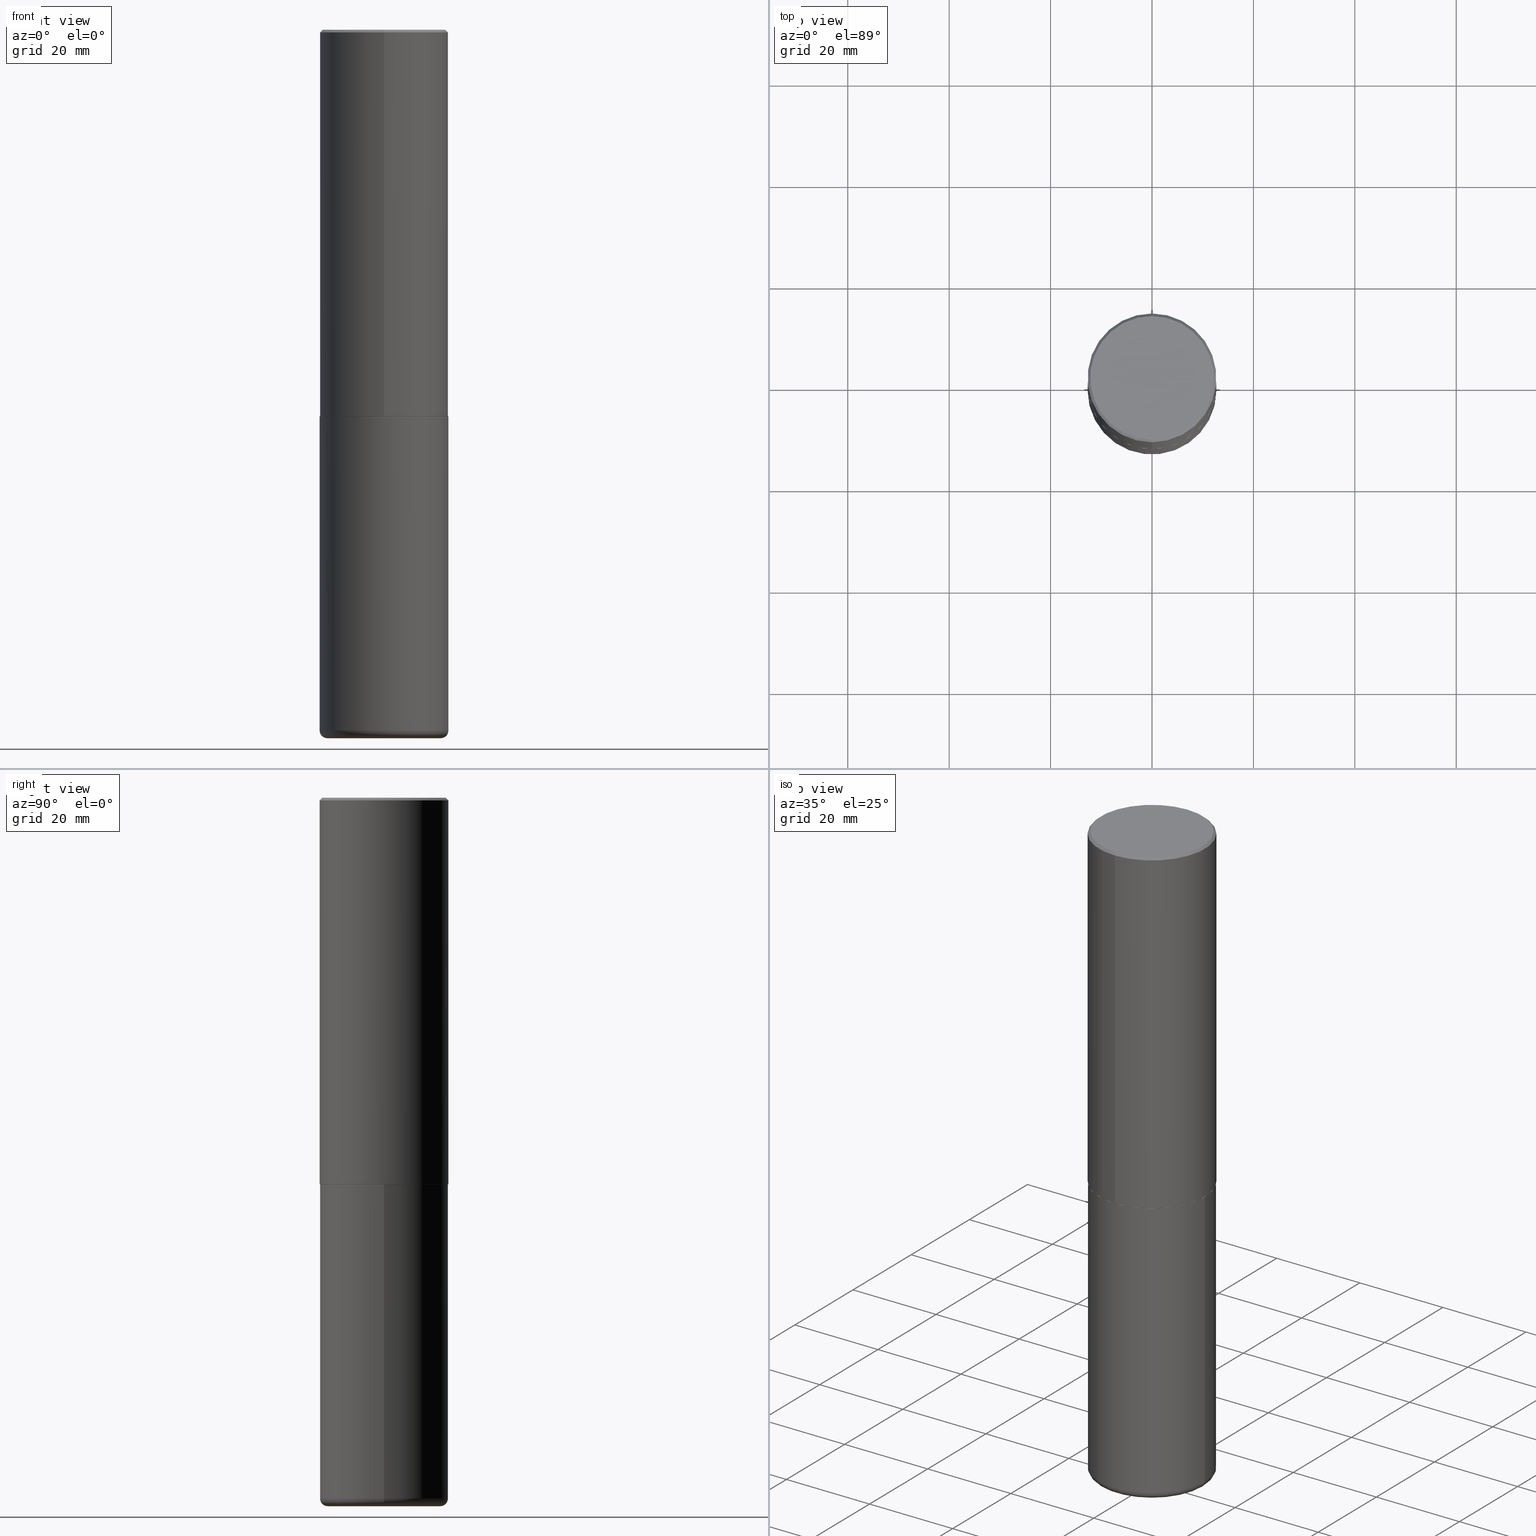
[diagram: canonical four-view strip — front | top / right | iso, engineering-drawing reading convention]
A machine part, canonical four-view strip (front | top / right | iso — engineering-drawing reading convention). The complete STEP part file that produces these views, byte-faithful:
ISO-10303-21;
HEADER;
FILE_DESCRIPTION (( 'STEP AP203' ),
    '1' );
FILE_NAME ('77471.STEP',
    '2024-05-02T19:46:28',
    ( '' ),
    ( '' ),
    'SwSTEP 2.0',
    'SolidWorks 2023',
    '' );
FILE_SCHEMA (( 'CONFIG_CONTROL_DESIGN' ));
ENDSEC;

DATA;
#1 = CARTESIAN_POINT ( 'NONE',  ( 0.000000000000000000, 0.000000000000000000, 0.000000000000000000 ) ) ;
#2 = DIRECTION ( 'NONE',  ( -2.445468806185136597E-29, 3.491481338843145583E-15, 1.000000000000000000 ) ) ;
#3 = VECTOR ( 'NONE', #286, 39.37007874015748143 ) ;
#4 = ORIENTED_EDGE ( 'NONE', *, *, #26, .F. ) ;
#5 = DIRECTION ( 'NONE',  ( -2.445468806185136597E-29, 3.491481338843145583E-15, 1.000000000000000000 ) ) ;
#6 = CIRCLE ( 'NONE', #68, 0.4400000000000000022 ) ;
#7 = ORGANIZATION ( 'UNSPECIFIED', 'UNSPECIFIED', '' ) ;
#8 = ORIENTED_EDGE ( 'NONE', *, *, #89, .T. ) ;
#9 = ORIENTED_EDGE ( 'NONE', *, *, #105, .F. ) ;
#10 = APPROVAL_ROLE ( '' ) ;
#11 = VECTOR ( 'NONE', #307, 39.37007874015748143 ) ;
#12 = APPROVAL_PERSON_ORGANIZATION ( #18, #39, #78 ) ;
#13 = CYLINDRICAL_SURFACE ( 'NONE', #332, 0.5000000000000001110 ) ;
#14 = ORIENTED_EDGE ( 'NONE', *, *, #167, .T. ) ;
#15 = COORDINATED_UNIVERSAL_TIME_OFFSET ( 5, 0, .BEHIND. ) ;
#16 = CARTESIAN_POINT ( 'NONE',  ( -3.491481338843061963E-15, -0.5000000000000107692, -2.998999999999998778 ) ) ;
#17 = ORIENTED_EDGE ( 'NONE', *, *, #63, .F. ) ;
#18 = PERSON_AND_ORGANIZATION ( #201, #7 ) ;
#19 = CARTESIAN_POINT ( 'NONE',  ( 4.892036605208077240E-31, -6.981388857391842821E-17, -0.02000000000000010797 ) ) ;
#20 = CARTESIAN_POINT ( 'NONE',  ( 7.338054907812074731E-29, -1.047208328608770642E-14, -2.999999999999999556 ) ) ;
#21 = LINE ( 'NONE', #159, #3 ) ;
#22 = FACE_OUTER_BOUND ( 'NONE', #253, .T. ) ;
#23 = CONICAL_SURFACE ( 'NONE', #53, 0.5000000000000000000, 0.7853981633974463916 ) ;
#24 = CIRCLE ( 'NONE', #259, 0.4989999999999999991 ) ;
#25 = DIRECTION ( 'NONE',  ( 2.446018302604025378E-29, -3.490694428695902798E-15, -1.000000000000000000 ) ) ;
#26 = EDGE_CURVE ( 'NONE', #322, #49, #325, .T. ) ;
#27 = EDGE_LOOP ( 'NONE', ( #90, #146, #282, #215 ) ) ;
#28 = CC_DESIGN_PERSON_AND_ORGANIZATION_ASSIGNMENT ( #404, #211, ( #333 ) ) ;
#29 = AXIS2_PLACEMENT_3D ( 'NONE', #323, #381, #288 ) ;
#30 = PERSON_AND_ORGANIZATION_ROLE ( 'design_owner' ) ;
#31 = CARTESIAN_POINT ( 'NONE',  ( 1.330335030564714425E-28, -1.899365848330671298E-14, -5.439999999999999503 ) ) ;
#32 = AXIS2_PLACEMENT_3D ( 'NONE', #357, #133, #314 ) ;
#33 = DIRECTION ( 'NONE',  ( -4.937700262167245946E-15, -0.7071067811869314879, 0.7071067811861635466 ) ) ;
#34 = CARTESIAN_POINT ( 'NONE',  ( 0.000000000000000000, 0.000000000000000000, 0.000000000000000000 ) ) ;
#35 = ADVANCED_FACE ( 'NONE', ( #22 ), #23, .T. ) ;
#36 = VERTEX_POINT ( 'NONE', #284 ) ;
#37 = CARTESIAN_POINT ( 'NONE',  ( 7.336406418555408669E-29, -1.047444401652943478E-14, -2.999999999999999556 ) ) ;
#38 = ORIENTED_EDGE ( 'NONE', *, *, #151, .F. ) ;
#39 = APPROVAL ( #279, 'UNSPECIFIED' ) ;
#40 = DIRECTION ( 'NONE',  ( -2.446018302604025378E-29, 3.490694428695902798E-15, 1.000000000000000000 ) ) ;
#41 = DIRECTION ( 'NONE',  ( -2.446018302604025378E-29, 3.490694428695902798E-15, 1.000000000000000000 ) ) ;
#42 = CIRCLE ( 'NONE', #285, 0.5000000000000003331 ) ;
#43 = COORDINATED_UNIVERSAL_TIME_OFFSET ( 5, 0, .BEHIND. ) ;
#44 = CARTESIAN_POINT ( 'NONE',  ( -3.430248998885764992E-15, -0.5000000000000001110, -0.01999999999999835937 ) ) ;
#45 = PRODUCT_DEFINITION ( 'UNKNOWN', '', #333, #250 ) ;
#46 = DIRECTION ( 'NONE',  ( 6.982962677686265922E-15, 1.000000000000000000, -3.490694428695902798E-15 ) ) ;
#47 = DIRECTION ( 'NONE',  ( -1.000000000000000000, 6.982962677686265922E-15, -4.876176775795935793E-29 ) ) ;
#48 = APPLICATION_CONTEXT ( 'configuration controlled 3d designs of mechanical parts and assemblies' ) ;
#49 = VERTEX_POINT ( 'NONE', #355 ) ;
#50 = DATE_AND_TIME ( #84, #141 ) ;
#51 = EDGE_LOOP ( 'NONE', ( #38, #301, #8, #382 ) ) ;
#52 = DIRECTION ( 'NONE',  ( -6.982962677686265922E-15, -1.000000000000000000, 3.491643216902136408E-15 ) ) ;
#53 = AXIS2_PLACEMENT_3D ( 'NONE', #352, #416, #321 ) ;
#54 = AXIS2_PLACEMENT_3D ( 'NONE', #263, #170, #118 ) ;
#55 = DIRECTION ( 'NONE',  ( -2.446018302604025097E-29, 3.490694428695902798E-15, 1.000000000000000000 ) ) ;
#56 = ORIENTED_EDGE ( 'NONE', *, *, #83, .F. ) ;
#57 = CARTESIAN_POINT ( 'NONE',  ( 1.330335030564714425E-28, -1.899365848330671298E-14, -5.439999999999999503 ) ) ;
#58 = CARTESIAN_POINT ( 'NONE',  ( 0.000000000000000000, 0.000000000000000000, 0.000000000000000000 ) ) ;
#59 = EDGE_LOOP ( 'NONE', ( #274, #186, #206, #4 ) ) ;
#60 = EDGE_CURVE ( 'NONE', #413, #322, #155, .T. ) ;
#61 = ORIENTED_EDGE ( 'NONE', *, *, #271, .F. ) ;
#62 = AXIS2_PLACEMENT_3D ( 'NONE', #208, #41, #52 ) ;
#63 = EDGE_CURVE ( 'NONE', #36, #287, #319, .T. ) ;
#64 = ORIENTED_EDGE ( 'NONE', *, *, #143, .T. ) ;
#65 = FACE_OUTER_BOUND ( 'NONE', #374, .T. ) ;
#66 = APPROVAL ( #216, 'UNSPECIFIED' ) ;
#67 = ADVANCED_FACE ( 'NONE', ( #185 ), #258, .T. ) ;
#68 = AXIS2_PLACEMENT_3D ( 'NONE', #157, #251, #132 ) ;
#69 = TOROIDAL_SURFACE ( 'NONE', #391, 0.4400000000000000022, 0.06000000000000051820 ) ;
#70 = ADVANCED_FACE ( 'NONE', ( #188 ), #194, .F. ) ;
#71 = PLANE ( 'NONE',  #359 ) ;
#72 = DIRECTION ( 'NONE',  ( -2.445468806185136877E-29, 3.491481338843145188E-15, 1.000000000000000000 ) ) ;
#73 = MECHANICAL_CONTEXT ( 'NONE', #48, 'mechanical' ) ;
#74 = VECTOR ( 'NONE', #97, 39.37007874015748143 ) ;
#75 = LOCAL_TIME ( 15, 46, 28.00000000000000000, #306 ) ;
#76 = ORIENTED_EDGE ( 'NONE', *, *, #271, .T. ) ;
#77 = LINE ( 'NONE', #390, #128 ) ;
#78 = APPROVAL_ROLE ( '' ) ;
#79 = CARTESIAN_POINT ( 'NONE',  ( 3.351822085289408337E-15, 0.4800000000000000933, -1.729078590335627126E-15 ) ) ;
#80 = DIRECTION ( 'NONE',  ( -2.446018302604025378E-29, 3.490694428695902798E-15, 1.000000000000000000 ) ) ;
#81 = AXIS2_PLACEMENT_3D ( 'NONE', #397, #40, #175 ) ;
#82 = AXIS2_PLACEMENT_3D ( 'NONE', #31, #137, #334 ) ;
#83 = EDGE_CURVE ( 'NONE', #112, #336, #6, .T. ) ;
#84 = CALENDAR_DATE ( 2024, 2, 5 ) ;
#85 = CALENDAR_DATE ( 2024, 2, 5 ) ;
#86 = CARTESIAN_POINT ( 'NONE',  ( -0.4400000000000000022, -1.586727044596227254E-14, -5.439999999999999503 ) ) ;
#87 = ORIENTED_EDGE ( 'NONE', *, *, #99, .T. ) ;
#88 = PERSON_AND_ORGANIZATION ( #201, #7 ) ;
#89 = EDGE_CURVE ( 'NONE', #287, #322, #383, .T. ) ;
#90 = ORIENTED_EDGE ( 'NONE', *, *, #83, .T. ) ;
#91 = EDGE_CURVE ( 'NONE', #305, #205, #276, .T. ) ;
#92 = DIRECTION ( 'NONE',  ( -6.982962677686265922E-15, -1.000000000000000000, 3.491643216902136408E-15 ) ) ;
#93 = DIRECTION ( 'NONE',  ( 1.000000000000000000, -6.982962677686262766E-15, 4.883557194083111780E-29 ) ) ;
#94 = CARTESIAN_POINT ( 'NONE',  ( 3.549160965121774184E-15, 0.4989999999999895630, -3.000000000000001332 ) ) ;
#95 = CARTESIAN_POINT ( 'NONE',  ( 3.552713678800501718E-15, 0.5000000000000001110, -1.745347214347951794E-15 ) ) ;
#96 = CIRCLE ( 'NONE', #362, 0.06000000000000051820 ) ;
#97 = DIRECTION ( 'NONE',  ( 4.937700262164537787E-15, 0.7071067811865436870, -0.7071067811865513475 ) ) ;
#98 = DIRECTION ( 'NONE',  ( -6.982962677686265922E-15, -1.000000000000000000, 3.284787166730577015E-15 ) ) ;
#99 = EDGE_CURVE ( 'NONE', #160, #413, #77, .T. ) ;
#100 = CARTESIAN_POINT ( 'NONE',  ( 3.552713678800539584E-15, 0.4999999999999898970, -2.999000000000001886 ) ) ;
#101 = CLOSED_SHELL ( 'NONE', ( #231, #235, #70, #318, #254, #218 ) ) ;
#102 = AXIS2_PLACEMENT_3D ( 'NONE', #79, #176, #46 ) ;
#103 = DIRECTION ( 'NONE',  ( 0.000000000000000000, 0.000000000000000000, 1.000000000000000000 ) ) ;
#104 =( NAMED_UNIT ( * ) PLANE_ANGLE_UNIT ( ) SI_UNIT ( $, .RADIAN. ) );
#105 = EDGE_CURVE ( 'NONE', #336, #370, #96, .T. ) ;
#106 = PERSON_AND_ORGANIZATION ( #201, #7 ) ;
#107 = ORIENTED_EDGE ( 'NONE', *, *, #125, .T. ) ;
#108 = DIRECTION ( 'NONE',  ( -2.446018302604025378E-29, 3.490694428695902798E-15, 1.000000000000000000 ) ) ;
#109 = DIRECTION ( 'NONE',  ( -1.000000000000000000, 7.105427357600994759E-15, 0.000000000000000000 ) ) ;
#110 = AXIS2_PLACEMENT_3D ( 'NONE', #221, #252, #223 ) ;
#111 = CC_DESIGN_SECURITY_CLASSIFICATION ( #190, ( #333 ) ) ;
#112 = VERTEX_POINT ( 'NONE', #338 ) ;
#113 = FACE_OUTER_BOUND ( 'NONE', #272, .T. ) ;
#114 = DATE_TIME_ROLE ( 'creation_date' ) ;
#115 = CARTESIAN_POINT ( 'NONE',  ( -0.5000000000000000000, -1.118133757111757295E-14, -2.999999999999999556 ) ) ;
#116 = EDGE_LOOP ( 'NONE', ( #64, #203, #120, #236 ) ) ;
#117 = DATE_AND_TIME ( #348, #292 ) ;
#118 = DIRECTION ( 'NONE',  ( 1.000000000000000000, -6.982962677686273021E-15, 0.000000000000000000 ) ) ;
#119 = CC_DESIGN_APPROVAL ( #387, ( #45 ) ) ;
#120 = ORIENTED_EDGE ( 'NONE', *, *, #195, .F. ) ;
#121 = COORDINATED_UNIVERSAL_TIME_OFFSET ( 5, 0, .BEHIND. ) ;
#122 = DIRECTION ( 'NONE',  ( -2.445468806185136597E-29, 3.491481338843145583E-15, 1.000000000000000000 ) ) ;
#123 = LENGTH_MEASURE_WITH_UNIT ( LENGTH_MEASURE( 0.02539999999999999897 ), #328 );
#124 = ORIENTED_EDGE ( 'NONE', *, *, #181, .T. ) ;
#125 = EDGE_CURVE ( 'NONE', #205, #305, #353, .T. ) ;
#126 = DIRECTION ( 'NONE',  ( -4.851104656540954020E-15, -0.7071067811865485719, -0.7071067811865464625 ) ) ;
#127 = ORIENTED_EDGE ( 'NONE', *, *, #293, .F. ) ;
#128 = VECTOR ( 'NONE', #270, 39.37007874015748143 ) ;
#129 = CARTESIAN_POINT ( 'NONE',  ( 7.336406418555408669E-29, -1.047444401652943478E-14, -2.999999999999999556 ) ) ;
#130 = CC_DESIGN_PERSON_AND_ORGANIZATION_ASSIGNMENT ( #106, #30, ( #349 ) ) ;
#131 = DIRECTION ( 'NONE',  ( -2.446018302604025378E-29, 3.490694428695902798E-15, 1.000000000000000000 ) ) ;
#132 = DIRECTION ( 'NONE',  ( 1.000000000000000000, -6.982962677686270655E-15, 0.000000000000000000 ) ) ;
#133 = DIRECTION ( 'NONE',  ( -2.446018302604025378E-29, 3.490694428695902798E-15, 1.000000000000000000 ) ) ;
#134 = ADVANCED_BREP_SHAPE_REPRESENTATION ( '77471', ( #196, #200, #320 ), #298 ) ;
#135 = AXIS2_PLACEMENT_3D ( 'NONE', #376, #405, #47 ) ;
#136 = VECTOR ( 'NONE', #33, 39.37007874015748143 ) ;
#137 = DIRECTION ( 'NONE',  ( -2.445468806185136597E-29, 3.491481338843145583E-15, 1.000000000000000000 ) ) ;
#138 = ADVANCED_FACE ( 'NONE', ( #341 ), #297, .T. ) ;
#139 =( CONVERSION_BASED_UNIT ( 'INCH', #123 ) LENGTH_UNIT ( ) NAMED_UNIT ( #277 ) );
#140 = AXIS2_PLACEMENT_3D ( 'NONE', #418, #378, #92 ) ;
#141 = LOCAL_TIME ( 15, 46, 28.00000000000000000, #121 ) ;
#142 = DIRECTION ( 'NONE',  ( 1.000000000000000000, -6.982962677686269077E-15, 0.000000000000000000 ) ) ;
#143 = EDGE_CURVE ( 'NONE', #245, #413, #42, .T. ) ;
#144 = AXIS2_PLACEMENT_3D ( 'NONE', #57, #315, #93 ) ;
#145 = EDGE_LOOP ( 'NONE', ( #124, #339 ) ) ;
#146 = ORIENTED_EDGE ( 'NONE', *, *, #105, .T. ) ;
#147 = EDGE_LOOP ( 'NONE', ( #56, #400 ) ) ;
#148 = PERSON_AND_ORGANIZATION_ROLE ( 'creator' ) ;
#149 = PLANE ( 'NONE',  #135 ) ;
#150 = CC_DESIGN_APPROVAL ( #66, ( #333 ) ) ;
#151 = EDGE_CURVE ( 'NONE', #36, #49, #345, .T. ) ;
#152 = ORIENTED_EDGE ( 'NONE', *, *, #293, .T. ) ;
#153 = APPROVAL_DATE_TIME ( #275, #66 ) ;
#154 = CARTESIAN_POINT ( 'NONE',  ( 1.330335030564714425E-28, -1.899365848330671298E-14, -5.439999999999999503 ) ) ;
#155 = LINE ( 'NONE', #95, #291 ) ;
#156 = CALENDAR_DATE ( 2024, 2, 5 ) ;
#157 = CARTESIAN_POINT ( 'NONE',  ( 1.345007843401825128E-28, -1.920314736363730603E-14, -5.500000000000000888 ) ) ;
#158 = CIRCLE ( 'NONE', #379, 0.4989999999999999991 ) ;
#159 = CARTESIAN_POINT ( 'NONE',  ( -3.491481338843133750E-15, -0.5000000000000001110, 1.745347214347951794E-15 ) ) ;
#160 = VERTEX_POINT ( 'NONE', #94 ) ;
#161 = ORIENTED_EDGE ( 'NONE', *, *, #294, .F. ) ;
#162 = EDGE_LOOP ( 'NONE', ( #308, #269, #173, #408 ) ) ;
#163 = AXIS2_PLACEMENT_3D ( 'NONE', #37, #5, #268 ) ;
#164 = ADVANCED_FACE ( 'NONE', ( #244 ), #222, .T. ) ;
#165 = APPLICATION_PROTOCOL_DEFINITION ( 'international standard', 'config_control_design', 1994, #346 ) ;
#166 = LINE ( 'NONE', #364, #197 ) ;
#167 = EDGE_CURVE ( 'NONE', #370, #205, #182, .T. ) ;
#168 = CIRCLE ( 'NONE', #309, 0.4400000000000000022 ) ;
#169 = CIRCLE ( 'NONE', #54, 0.06000000000000051820 ) ;
#170 = DIRECTION ( 'NONE',  ( -6.982962677686266711E-15, -1.000000000000000000, 3.491481338843145583E-15 ) ) ;
#171 = ADVANCED_FACE ( 'NONE', ( #412 ), #13, .T. ) ;
#172 = EDGE_LOOP ( 'NONE', ( #152, #87, #240, #361 ) ) ;
#173 = ORIENTED_EDGE ( 'NONE', *, *, #311, .T. ) ;
#174 = EDGE_CURVE ( 'NONE', #245, #49, #21, .T. ) ;
#175 = DIRECTION ( 'NONE',  ( -6.982962677686265922E-15, -1.000000000000000000, 3.284787166730577015E-15 ) ) ;
#176 = DIRECTION ( 'NONE',  ( 2.446018302604025097E-29, -3.490694428695902798E-15, -1.000000000000000000 ) ) ;
#177 = ORIENTED_EDGE ( 'NONE', *, *, #198, .T. ) ;
#178 = CALENDAR_DATE ( 2024, 2, 5 ) ;
#179 = CARTESIAN_POINT ( 'NONE',  ( 1.330335030564714425E-28, -1.899365848330671298E-14, -5.439999999999999503 ) ) ;
#180 = DATE_TIME_ROLE ( 'classification_date' ) ;
#181 = EDGE_CURVE ( 'NONE', #287, #36, #358, .T. ) ;
#182 = LINE ( 'NONE', #219, #11 ) ;
#183 = ORIENTED_EDGE ( 'NONE', *, *, #394, .T. ) ;
#184 = CC_DESIGN_PERSON_AND_ORGANIZATION_ASSIGNMENT ( #372, #148, ( #333 ) ) ;
#185 = FACE_OUTER_BOUND ( 'NONE', #51, .T. ) ;
#186 = ORIENTED_EDGE ( 'NONE', *, *, #256, .T. ) ;
#187 = DIRECTION ( 'NONE',  ( -6.982962677686265922E-15, -1.000000000000000000, 3.490694428695902798E-15 ) ) ;
#188 = FACE_OUTER_BOUND ( 'NONE', #210, .T. ) ;
#189 = AXIS2_PLACEMENT_3D ( 'NONE', #58, #377, #187 ) ;
#190 = SECURITY_CLASSIFICATION ( '', '', #351 ) ;
#191 = ORIENTED_EDGE ( 'NONE', *, *, #89, .F. ) ;
#192 = CARTESIAN_POINT ( 'NONE',  ( -3.484498376165373188E-15, -0.4990000000000104352, -2.999999999999998224 ) ) ;
#193 = PRODUCT_RELATED_PRODUCT_CATEGORY ( 'detail', '', ( #349 ) ) ;
#194 = PLANE ( 'NONE',  #265 ) ;
#195 = EDGE_CURVE ( 'NONE', #49, #322, #238, .T. ) ;
#196 = MANIFOLD_SOLID_BREP ( 'Body-Move/Copy2[1]', #101 ) ;
#197 = VECTOR ( 'NONE', #72, 39.37007874015748143 ) ;
#198 = EDGE_CURVE ( 'NONE', #336, #112, #168, .T. ) ;
#199 = CARTESIAN_POINT ( 'NONE',  ( 0.5000000000000002220, -2.248513982214985265E-14, -5.439999999999999503 ) ) ;
#200 = MANIFOLD_SOLID_BREP ( 'Body-Move/Copy2[2]', #224 ) ;
#201 = PERSON ( 'UNSPECIFIED', 'UNSPECIFIED', 'UNSPECIFIED', ('UNSPECIFIED'), ('UNSPECIFIED'), ('UNSPECIFIED') ) ;
#202 = UNCERTAINTY_MEASURE_WITH_UNIT (LENGTH_MEASURE( 1.000000000000000082E-05 ), #139, 'distance_accuracy_value', 'NONE');
#203 = ORIENTED_EDGE ( 'NONE', *, *, #60, .T. ) ;
#204 = FACE_OUTER_BOUND ( 'NONE', #242, .T. ) ;
#205 = VERTEX_POINT ( 'NONE', #115 ) ;
#206 = ORIENTED_EDGE ( 'NONE', *, *, #174, .T. ) ;
#207 = DIRECTION ( 'NONE',  ( -6.982962677686265922E-15, -1.000000000000000000, 3.278217592397113496E-15 ) ) ;
#208 = CARTESIAN_POINT ( 'NONE',  ( 4.892036605208077240E-31, -6.981388857391842821E-17, -0.02000000000000010797 ) ) ;
#209 = DATE_AND_TIME ( #178, #414 ) ;
#210 = EDGE_LOOP ( 'NONE', ( #343, #107 ) ) ;
#211 = PERSON_AND_ORGANIZATION_ROLE ( 'design_supplier' ) ;
#212 = DIRECTION ( 'NONE',  ( 7.105427357601001859E-15, 1.000000000000000000, -3.491481338843145583E-15 ) ) ;
#213 = FACE_OUTER_BOUND ( 'NONE', #27, .T. ) ;
#214 = CC_DESIGN_DATE_AND_TIME_ASSIGNMENT ( #209, #180, ( #190 ) ) ;
#215 = ORIENTED_EDGE ( 'NONE', *, *, #367, .F. ) ;
#216 = APPROVAL_STATUS ( 'not_yet_approved' ) ;
#217 = AXIS2_PLACEMENT_3D ( 'NONE', #227, #108, #262 ) ;
#218 = ADVANCED_FACE ( 'NONE', ( #395 ), #149, .T. ) ;
#219 = CARTESIAN_POINT ( 'NONE',  ( -0.5000000000000000000, 3.552713678800500929E-15, -2.459467545127452891E-29 ) ) ;
#220 = ORIENTED_EDGE ( 'NONE', *, *, #256, .F. ) ;
#221 = CARTESIAN_POINT ( 'NONE',  ( 7.336406418555408669E-29, -1.047444401652943478E-14, -2.999999999999999556 ) ) ;
#222 = CYLINDRICAL_SURFACE ( 'NONE', #189, 0.5000000000000001110 ) ;
#223 = DIRECTION ( 'NONE',  ( 1.000000000000000000, -6.982962677686266711E-15, 0.000000000000000000 ) ) ;
#224 = CLOSED_SHELL ( 'NONE', ( #138, #171, #35, #67, #164, #399, #410, #385 ) ) ;
#225 = ORIENTED_EDGE ( 'NONE', *, *, #151, .T. ) ;
#226 = CARTESIAN_POINT ( 'NONE',  ( 3.421651712066271240E-15, 0.4800000000000000933, -1.782623854897220357E-15 ) ) ;
#227 = CARTESIAN_POINT ( 'NONE',  ( 7.338054907812074731E-29, -1.047208328608770642E-14, -2.999999999999999556 ) ) ;
#228 = DIRECTION ( 'NONE',  ( -6.982962677686265922E-15, -1.000000000000000000, 3.284787166730577015E-15 ) ) ;
#229 = CYLINDRICAL_SURFACE ( 'NONE', #310, 0.5000000000000000000 ) ;
#230 = CARTESIAN_POINT ( 'NONE',  ( 7.338054907812074731E-29, -1.047208328608770642E-14, -2.999999999999999556 ) ) ;
#231 = ADVANCED_FACE ( 'NONE', ( #113 ), #239, .T. ) ;
#232 = ORIENTED_EDGE ( 'NONE', *, *, #363, .T. ) ;
#233 = DIRECTION ( 'NONE',  ( 1.000000000000000000, 0.000000000000000000, 0.000000000000000000 ) ) ;
#234 = CARTESIAN_POINT ( 'NONE',  ( 0.000000000000000000, 0.000000000000000000, 0.000000000000000000 ) ) ;
#235 = ADVANCED_FACE ( 'NONE', ( #213 ), #69, .T. ) ;
#236 = ORIENTED_EDGE ( 'NONE', *, *, #174, .F. ) ;
#237 = APPROVAL_DATE_TIME ( #117, #387 ) ;
#238 = CIRCLE ( 'NONE', #62, 0.5000000000000000000 ) ;
#239 = CYLINDRICAL_SURFACE ( 'NONE', #302, 0.5000000000000000000 ) ;
#240 = ORIENTED_EDGE ( 'NONE', *, *, #143, .F. ) ;
#241 = APPROVAL_ROLE ( '' ) ;
#242 = EDGE_LOOP ( 'NONE', ( #127, #61 ) ) ;
#243 = PERSON_AND_ORGANIZATION ( #201, #7 ) ;
#244 = FACE_OUTER_BOUND ( 'NONE', #59, .T. ) ;
#245 = VERTEX_POINT ( 'NONE', #16 ) ;
#246 = SHAPE_DEFINITION_REPRESENTATION ( #389, #134 ) ;
#247 = DIRECTION ( 'NONE',  ( -2.446018302604025378E-29, 3.490694428695902798E-15, 1.000000000000000000 ) ) ;
#248 = CC_DESIGN_DATE_AND_TIME_ASSIGNMENT ( #50, #114, ( #45 ) ) ;
#249 = APPROVAL_PERSON_ORGANIZATION ( #273, #66, #241 ) ;
#250 = DESIGN_CONTEXT ( 'detailed design', #346, 'design' ) ;
#251 = DIRECTION ( 'NONE',  ( -2.445468806185136597E-29, 3.491481338843145583E-15, 1.000000000000000000 ) ) ;
#252 = DIRECTION ( 'NONE',  ( -2.445468806185136597E-29, 3.491481338843145583E-15, 1.000000000000000000 ) ) ;
#253 = EDGE_LOOP ( 'NONE', ( #17, #225, #403, #191 ) ) ;
#254 = ADVANCED_FACE ( 'NONE', ( #65 ), #344, .T. ) ;
#255 = CIRCLE ( 'NONE', #29, 0.5000000000000003331 ) ;
#256 = EDGE_CURVE ( 'NONE', #413, #245, #255, .T. ) ;
#257 = CARTESIAN_POINT ( 'NONE',  ( 0.5000000000000000000, -1.396592535537256813E-14, -2.999999999999999556 ) ) ;
#258 = CONICAL_SURFACE ( 'NONE', #296, 0.5000000000000000000, 0.7853981633974463916 ) ;
#259 = AXIS2_PLACEMENT_3D ( 'NONE', #290, #417, #98 ) ;
#260 =( NAMED_UNIT ( * ) SI_UNIT ( $, .STERADIAN. ) SOLID_ANGLE_UNIT ( ) );
#261 = CARTESIAN_POINT ( 'NONE',  ( 3.491481338843133355E-15, 0.4999999999999999445, -0.02000000000000185310 ) ) ;
#262 = DIRECTION ( 'NONE',  ( -6.982962677686265922E-15, -1.000000000000000000, 3.284787166730577015E-15 ) ) ;
#263 = CARTESIAN_POINT ( 'NONE',  ( 0.4400000000000000022, -2.206616206148867286E-14, -5.439999999999999503 ) ) ;
#264 = FACE_OUTER_BOUND ( 'NONE', #347, .T. ) ;
#265 = AXIS2_PLACEMENT_3D ( 'NONE', #129, #356, #312 ) ;
#266 = ORIENTED_EDGE ( 'NONE', *, *, #91, .F. ) ;
#267 = CONICAL_SURFACE ( 'NONE', #217, 0.4989999999999999991, 0.7853981633979947308 ) ;
#268 = DIRECTION ( 'NONE',  ( 1.000000000000000000, -6.982962677686266711E-15, 0.000000000000000000 ) ) ;
#269 = ORIENTED_EDGE ( 'NONE', *, *, #294, .T. ) ;
#270 = DIRECTION ( 'NONE',  ( 5.024295867790807626E-15, 0.7071067811869363728, 0.7071067811861586616 ) ) ;
#271 = EDGE_CURVE ( 'NONE', #160, #278, #24, .T. ) ;
#272 = EDGE_LOOP ( 'NONE', ( #183, #14, #266, #406 ) ) ;
#273 = PERSON_AND_ORGANIZATION ( #201, #7 ) ;
#274 = ORIENTED_EDGE ( 'NONE', *, *, #60, .F. ) ;
#275 = DATE_AND_TIME ( #85, #386 ) ;
#276 = CIRCLE ( 'NONE', #110, 0.5000000000000000000 ) ;
#277 = DIMENSIONAL_EXPONENTS ( 1.000000000000000000, 0.000000000000000000, 0.000000000000000000, 0.000000000000000000, 0.000000000000000000, 0.000000000000000000, 0.000000000000000000 ) ;
#278 = VERTEX_POINT ( 'NONE', #192 ) ;
#279 = APPROVAL_STATUS ( 'not_yet_approved' ) ;
#280 = CARTESIAN_POINT ( 'NONE',  ( -0.5000000000000002220, -1.544094480450621205E-14, -5.439999999999999503 ) ) ;
#281 = DIRECTION ( 'NONE',  ( -6.982962677686265922E-15, -1.000000000000000000, 3.490694428695902798E-15 ) ) ;
#282 = ORIENTED_EDGE ( 'NONE', *, *, #394, .F. ) ;
#283 = DATE_AND_TIME ( #156, #75 ) ;
#284 = CARTESIAN_POINT ( 'NONE',  ( -3.361644018908050055E-15, -0.4800000000000000933, 1.568442796650846842E-15 ) ) ;
#285 = AXIS2_PLACEMENT_3D ( 'NONE', #303, #80, #207 ) ;
#286 = DIRECTION ( 'NONE',  ( -2.446018302604025097E-29, 3.490694428695902798E-15, 1.000000000000000000 ) ) ;
#287 = VERTEX_POINT ( 'NONE', #226 ) ;
#288 = DIRECTION ( 'NONE',  ( -6.982962677686265922E-15, -1.000000000000000000, 3.278217592397113496E-15 ) ) ;
#289 = ORIENTED_EDGE ( 'NONE', *, *, #367, .T. ) ;
#290 = CARTESIAN_POINT ( 'NONE',  ( 7.338054907812074731E-29, -1.047208328608770642E-14, -2.999999999999999556 ) ) ;
#291 = VECTOR ( 'NONE', #55, 39.37007874015748143 ) ;
#292 = LOCAL_TIME ( 15, 46, 28.00000000000000000, #15 ) ;
#293 = EDGE_CURVE ( 'NONE', #278, #160, #158, .T. ) ;
#294 = EDGE_CURVE ( 'NONE', #370, #350, #360, .T. ) ;
#295 = DIRECTION ( 'NONE',  ( 1.000000000000000000, -6.982962677686266711E-15, 4.876176775795935793E-29 ) ) ;
#296 = AXIS2_PLACEMENT_3D ( 'NONE', #19, #25, #317 ) ;
#297 = CONICAL_SURFACE ( 'NONE', #81, 0.4989999999999999991, 0.7853981633979947308 ) ;
#298 =( GEOMETRIC_REPRESENTATION_CONTEXT ( 3 ) GLOBAL_UNCERTAINTY_ASSIGNED_CONTEXT ( ( #202 ) ) GLOBAL_UNIT_ASSIGNED_CONTEXT ( ( #139, #104, #260 ) ) REPRESENTATION_CONTEXT ( 'NONE', 'WORKASPACE' ) );
#299 = DIRECTION ( 'NONE',  ( -2.445468806185136597E-29, 3.491481338843145583E-15, 1.000000000000000000 ) ) ;
#300 = CARTESIAN_POINT ( 'NONE',  ( -3.484498376165373188E-15, -0.4990000000000104352, -2.999999999999998224 ) ) ;
#301 = ORIENTED_EDGE ( 'NONE', *, *, #181, .F. ) ;
#302 = AXIS2_PLACEMENT_3D ( 'NONE', #234, #122, #369 ) ;
#303 = CARTESIAN_POINT ( 'NONE',  ( 7.335608889509473609E-29, -1.046859259165901344E-14, -2.999000000000000554 ) ) ;
#304 = DIRECTION ( 'NONE',  ( 1.000000000000000000, -6.982962677686270655E-15, 0.000000000000000000 ) ) ;
#305 = VERTEX_POINT ( 'NONE', #257 ) ;
#306 = COORDINATED_UNIVERSAL_TIME_OFFSET ( 5, 0, .BEHIND. ) ;
#307 = DIRECTION ( 'NONE',  ( -2.445468806185136877E-29, 3.491481338843145188E-15, 1.000000000000000000 ) ) ;
#308 = ORIENTED_EDGE ( 'NONE', *, *, #167, .F. ) ;
#309 = AXIS2_PLACEMENT_3D ( 'NONE', #401, #398, #304 ) ;
#310 = AXIS2_PLACEMENT_3D ( 'NONE', #34, #2, #295 ) ;
#311 = EDGE_CURVE ( 'NONE', #350, #305, #166, .T. ) ;
#312 = DIRECTION ( 'NONE',  ( -1.000000000000000000, 6.982962677686265922E-15, -4.876176775795935793E-29 ) ) ;
#313 = DIRECTION ( 'NONE',  ( -6.982962677686265922E-15, -1.000000000000000000, 3.490694428695902798E-15 ) ) ;
#314 = DIRECTION ( 'NONE',  ( -6.982962677686265922E-15, -1.000000000000000000, 3.490694428695902798E-15 ) ) ;
#315 = DIRECTION ( 'NONE',  ( -2.445468806185136597E-29, 3.491481338843145583E-15, 1.000000000000000000 ) ) ;
#316 = DIRECTION ( 'NONE',  ( -2.446018302604025378E-29, 3.490694428695902798E-15, 1.000000000000000000 ) ) ;
#317 = DIRECTION ( 'NONE',  ( 6.982962677686265922E-15, 1.000000000000000000, -3.491643216902136408E-15 ) ) ;
#318 = ADVANCED_FACE ( 'NONE', ( #330 ), #229, .T. ) ;
#319 = CIRCLE ( 'NONE', #32, 0.4800000000000000933 ) ;
#320 = AXIS2_PLACEMENT_3D ( 'NONE', #1, #103, #233 ) ;
#321 = DIRECTION ( 'NONE',  ( 6.982962677686265922E-15, 1.000000000000000000, -3.491643216902136408E-15 ) ) ;
#322 = VERTEX_POINT ( 'NONE', #261 ) ;
#323 = CARTESIAN_POINT ( 'NONE',  ( 7.335608889509473609E-29, -1.046859259165901344E-14, -2.999000000000000554 ) ) ;
#324 = DIRECTION ( 'NONE',  ( 1.000000000000000000, -6.982962677686262766E-15, 4.883557194083111780E-29 ) ) ;
#325 = CIRCLE ( 'NONE', #140, 0.5000000000000000000 ) ;
#326 = CIRCLE ( 'NONE', #384, 0.5000000000000001110 ) ;
#327 = CC_DESIGN_PERSON_AND_ORGANIZATION_ASSIGNMENT ( #88, #407, ( #45 ) ) ;
#328 =( LENGTH_UNIT ( ) NAMED_UNIT ( * ) SI_UNIT ( $, .METRE. ) );
#329 = APPLICATION_PROTOCOL_DEFINITION ( 'international standard', 'config_control_design', 1994, #48 ) ;
#330 = FACE_OUTER_BOUND ( 'NONE', #162, .T. ) ;
#331 = LINE ( 'NONE', #300, #136 ) ;
#332 = AXIS2_PLACEMENT_3D ( 'NONE', #354, #316, #313 ) ;
#333 = PRODUCT_DEFINITION_FORMATION_WITH_SPECIFIED_SOURCE ( 'ANY', '', #349, .NOT_KNOWN. ) ;
#334 = DIRECTION ( 'NONE',  ( 1.000000000000000000, -6.982962677686269077E-15, 0.000000000000000000 ) ) ;
#335 = CC_DESIGN_PERSON_AND_ORGANIZATION_ASSIGNMENT ( #243, #409, ( #190 ) ) ;
#336 = VERTEX_POINT ( 'NONE', #388 ) ;
#337 = DIRECTION ( 'NONE',  ( -6.982962677686265922E-15, -1.000000000000000000, 3.490694428695902798E-15 ) ) ;
#338 = CARTESIAN_POINT ( 'NONE',  ( 0.4400000000000000022, -2.227565094181926275E-14, -5.500000000000000888 ) ) ;
#339 = ORIENTED_EDGE ( 'NONE', *, *, #63, .T. ) ;
#340 = COORDINATED_UNIVERSAL_TIME_OFFSET ( 5, 0, .BEHIND. ) ;
#341 = FACE_OUTER_BOUND ( 'NONE', #172, .T. ) ;
#342 = VECTOR ( 'NONE', #126, 39.37007874015748143 ) ;
#343 = ORIENTED_EDGE ( 'NONE', *, *, #91, .T. ) ;
#344 = TOROIDAL_SURFACE ( 'NONE', #144, 0.4400000000000000022, 0.06000000000000051820 ) ;
#345 = LINE ( 'NONE', #44, #342 ) ;
#346 = APPLICATION_CONTEXT ( 'configuration controlled 3d designs of mechanical parts and assemblies' ) ;
#347 = EDGE_LOOP ( 'NONE', ( #392, #76, #232, #220 ) ) ;
#348 = CALENDAR_DATE ( 2024, 2, 5 ) ;
#349 = PRODUCT ( '77471', '77471', '', ( #73 ) ) ;
#350 = VERTEX_POINT ( 'NONE', #199 ) ;
#351 = SECURITY_CLASSIFICATION_LEVEL ( 'unclassified' ) ;
#352 = CARTESIAN_POINT ( 'NONE',  ( 4.892036605208077240E-31, -6.981388857391842821E-17, -0.02000000000000010797 ) ) ;
#353 = CIRCLE ( 'NONE', #163, 0.5000000000000000000 ) ;
#354 = CARTESIAN_POINT ( 'NONE',  ( 0.000000000000000000, 0.000000000000000000, 0.000000000000000000 ) ) ;
#355 = CARTESIAN_POINT ( 'NONE',  ( -3.430248998885764992E-15, -0.5000000000000001110, -0.01999999999999835937 ) ) ;
#356 = DIRECTION ( 'NONE',  ( 2.438088387897960049E-29, -3.491481338843145188E-15, -1.000000000000000000 ) ) ;
#357 = CARTESIAN_POINT ( 'NONE',  ( 2.619453942708643347E-45, -3.738203133764044518E-31, -1.070905291231867826E-16 ) ) ;
#358 = CIRCLE ( 'NONE', #402, 0.4800000000000000933 ) ;
#359 = AXIS2_PLACEMENT_3D ( 'NONE', #230, #366, #337 ) ;
#360 = CIRCLE ( 'NONE', #82, 0.5000000000000001110 ) ;
#361 = ORIENTED_EDGE ( 'NONE', *, *, #363, .F. ) ;
#362 = AXIS2_PLACEMENT_3D ( 'NONE', #86, #212, #109 ) ;
#363 = EDGE_CURVE ( 'NONE', #278, #245, #331, .T. ) ;
#364 = CARTESIAN_POINT ( 'NONE',  ( 0.5000000000000000000, -3.491481338843133355E-15, 2.438088387897967896E-29 ) ) ;
#365 = APPROVAL_PERSON_ORGANIZATION ( #373, #387, #10 ) ;
#366 = DIRECTION ( 'NONE',  ( -2.446018302604025097E-29, 3.490694428695902798E-15, 1.000000000000000000 ) ) ;
#367 = EDGE_CURVE ( 'NONE', #112, #350, #169, .T. ) ;
#368 = PLANE ( 'NONE',  #102 ) ;
#369 = DIRECTION ( 'NONE',  ( 1.000000000000000000, -6.982962677686266711E-15, 4.876176775795935793E-29 ) ) ;
#370 = VERTEX_POINT ( 'NONE', #280 ) ;
#371 = CC_DESIGN_APPROVAL ( #39, ( #190 ) ) ;
#372 = PERSON_AND_ORGANIZATION ( #201, #7 ) ;
#373 = PERSON_AND_ORGANIZATION ( #201, #7 ) ;
#374 = EDGE_LOOP ( 'NONE', ( #9, #177, #289, #161 ) ) ;
#375 = APPROVAL_STATUS ( 'not_yet_approved' ) ;
#376 = CARTESIAN_POINT ( 'NONE',  ( 3.911882143583421782E-29, -3.286238733195861778E-14, -5.500000000000000000 ) ) ;
#377 = DIRECTION ( 'NONE',  ( -2.446018302604025378E-29, 3.490694428695902798E-15, 1.000000000000000000 ) ) ;
#378 = DIRECTION ( 'NONE',  ( -2.446018302604025378E-29, 3.490694428695902798E-15, 1.000000000000000000 ) ) ;
#379 = AXIS2_PLACEMENT_3D ( 'NONE', #20, #247, #228 ) ;
#380 = CARTESIAN_POINT ( 'NONE',  ( 3.491481338843133355E-15, 0.4999999999999999445, -0.02000000000000185310 ) ) ;
#381 = DIRECTION ( 'NONE',  ( -2.446018302604025378E-29, 3.490694428695902798E-15, 1.000000000000000000 ) ) ;
#382 = ORIENTED_EDGE ( 'NONE', *, *, #26, .T. ) ;
#383 = LINE ( 'NONE', #380, #74 ) ;
#384 = AXIS2_PLACEMENT_3D ( 'NONE', #179, #299, #142 ) ;
#385 = ADVANCED_FACE ( 'NONE', ( #393 ), #368, .F. ) ;
#386 = LOCAL_TIME ( 15, 46, 28.00000000000000000, #43 ) ;
#387 = APPROVAL ( #375, 'UNSPECIFIED' ) ;
#388 = CARTESIAN_POINT ( 'NONE',  ( -0.4400000000000000022, -1.575885206539953724E-14, -5.500000000000000888 ) ) ;
#389 = PRODUCT_DEFINITION_SHAPE ( 'NONE', 'NONE',  #45 ) ;
#390 = CARTESIAN_POINT ( 'NONE',  ( 3.545608251442972496E-15, 0.4989999999999895630, -3.000000000000001332 ) ) ;
#391 = AXIS2_PLACEMENT_3D ( 'NONE', #154, #411, #324 ) ;
#392 = ORIENTED_EDGE ( 'NONE', *, *, #99, .F. ) ;
#393 = FACE_OUTER_BOUND ( 'NONE', #145, .T. ) ;
#394 = EDGE_CURVE ( 'NONE', #350, #370, #326, .T. ) ;
#395 = FACE_OUTER_BOUND ( 'NONE', #147, .T. ) ;
#396 = APPROVAL_DATE_TIME ( #283, #39 ) ;
#397 = CARTESIAN_POINT ( 'NONE',  ( 7.338054907812074731E-29, -1.047208328608770642E-14, -2.999999999999999556 ) ) ;
#398 = DIRECTION ( 'NONE',  ( -2.445468806185136597E-29, 3.491481338843145583E-15, 1.000000000000000000 ) ) ;
#399 = ADVANCED_FACE ( 'NONE', ( #264 ), #267, .T. ) ;
#400 = ORIENTED_EDGE ( 'NONE', *, *, #198, .F. ) ;
#401 = CARTESIAN_POINT ( 'NONE',  ( 1.345007843401825128E-28, -1.920314736363730603E-14, -5.500000000000000888 ) ) ;
#402 = AXIS2_PLACEMENT_3D ( 'NONE', #415, #131, #281 ) ;
#403 = ORIENTED_EDGE ( 'NONE', *, *, #195, .T. ) ;
#404 = PERSON_AND_ORGANIZATION ( #201, #7 ) ;
#405 = DIRECTION ( 'NONE',  ( 2.438088387897960049E-29, -3.491481338843145188E-15, -1.000000000000000000 ) ) ;
#406 = ORIENTED_EDGE ( 'NONE', *, *, #311, .F. ) ;
#407 = PERSON_AND_ORGANIZATION_ROLE ( 'creator' ) ;
#408 = ORIENTED_EDGE ( 'NONE', *, *, #125, .F. ) ;
#409 = PERSON_AND_ORGANIZATION_ROLE ( 'classification_officer' ) ;
#410 = ADVANCED_FACE ( 'NONE', ( #204 ), #71, .F. ) ;
#411 = DIRECTION ( 'NONE',  ( -2.445468806185136597E-29, 3.491481338843145583E-15, 1.000000000000000000 ) ) ;
#412 = FACE_OUTER_BOUND ( 'NONE', #116, .T. ) ;
#413 = VERTEX_POINT ( 'NONE', #100 ) ;
#414 = LOCAL_TIME ( 15, 46, 28.00000000000000000, #340 ) ;
#415 = CARTESIAN_POINT ( 'NONE',  ( 2.619453942708643347E-45, -3.738203133764044518E-31, -1.070905291231867826E-16 ) ) ;
#416 = DIRECTION ( 'NONE',  ( 2.446018302604025378E-29, -3.490694428695902798E-15, -1.000000000000000000 ) ) ;
#417 = DIRECTION ( 'NONE',  ( -2.446018302604025378E-29, 3.490694428695902798E-15, 1.000000000000000000 ) ) ;
#418 = CARTESIAN_POINT ( 'NONE',  ( 4.892036605208077240E-31, -6.981388857391842821E-17, -0.02000000000000010797 ) ) ;
ENDSEC;
END-ISO-10303-21;
